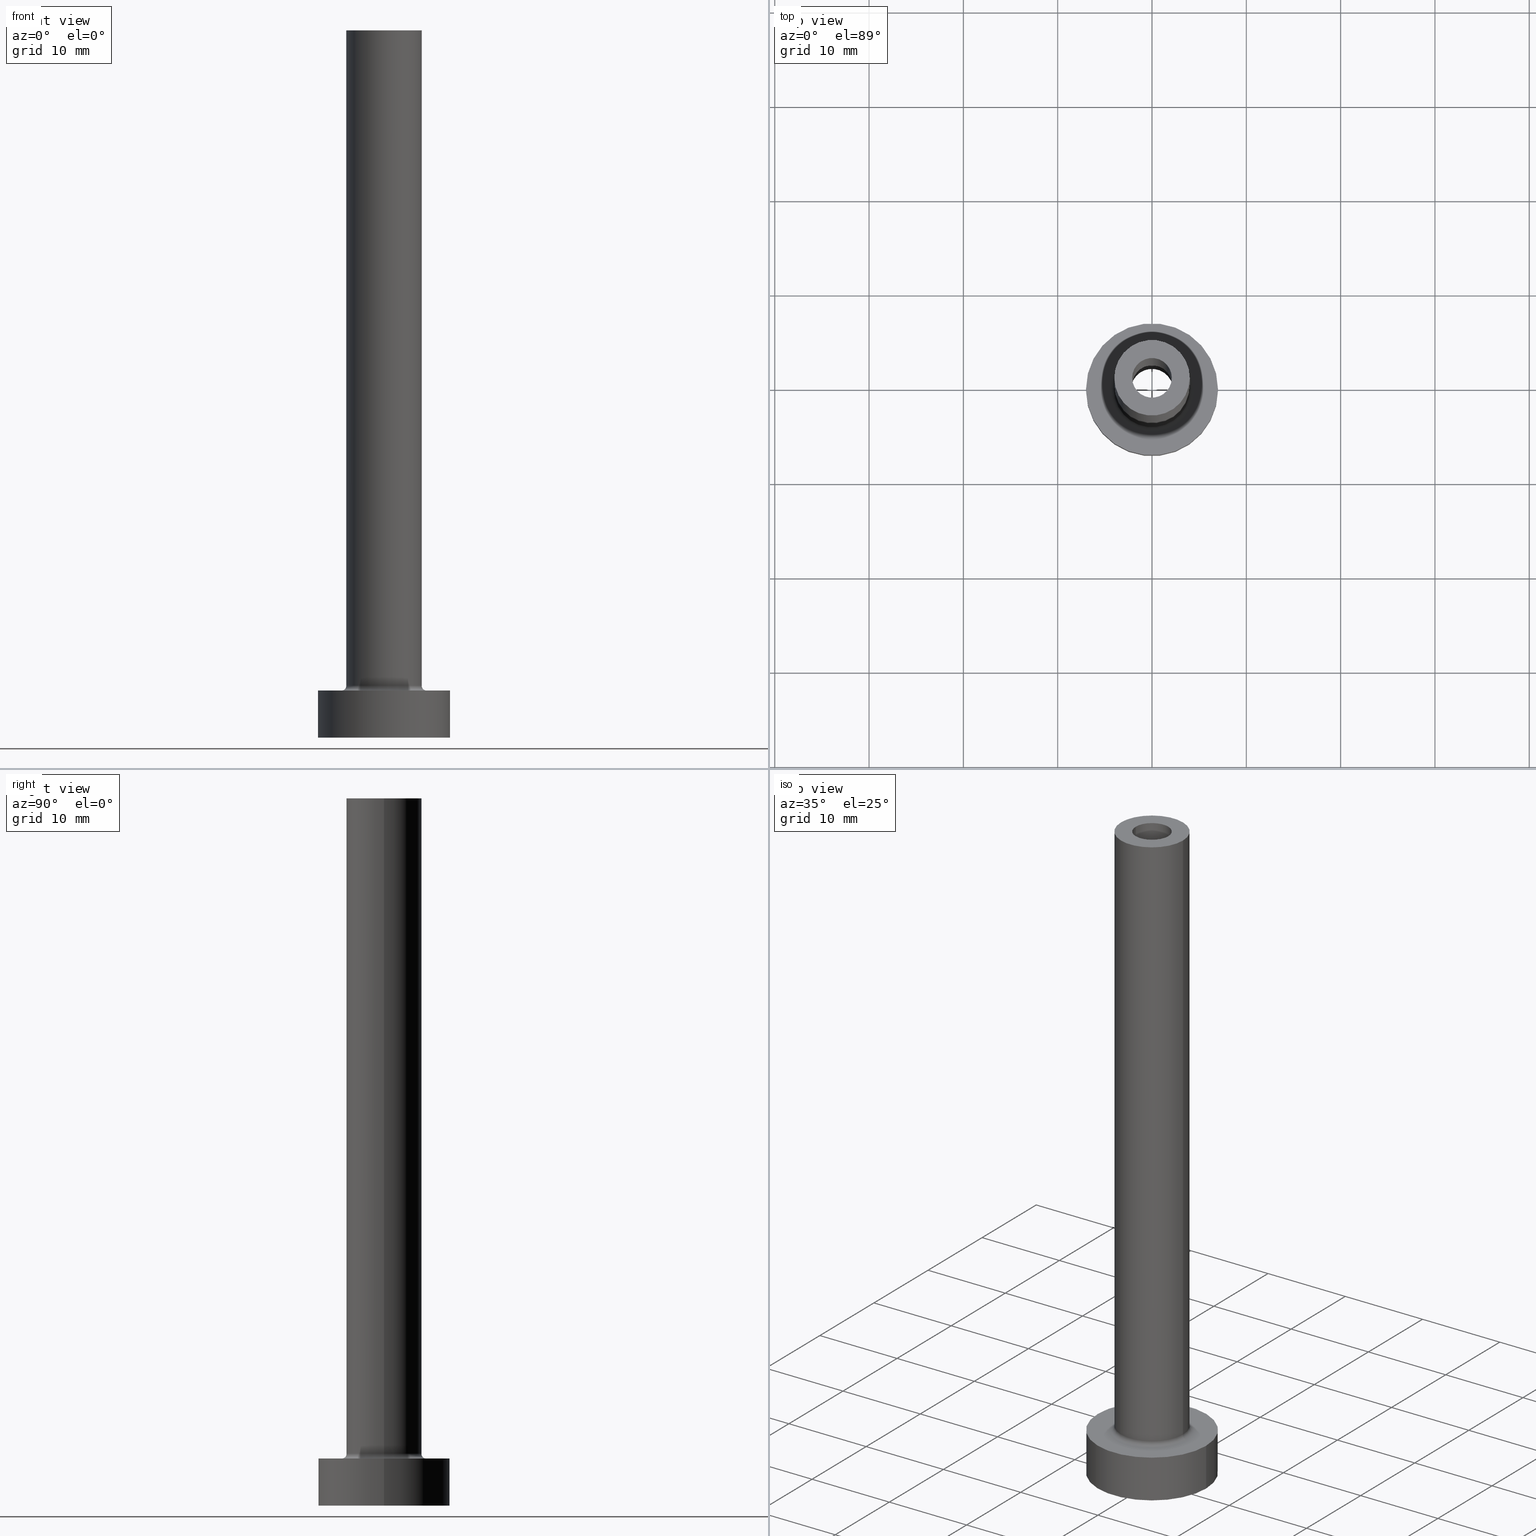
[diagram: canonical four-view strip — front | top / right | iso, engineering-drawing reading convention]
A machine part, canonical four-view strip (front | top / right | iso — engineering-drawing reading convention). The complete STEP part file that produces these views, byte-faithful:
ISO-10303-21;
HEADER;
FILE_DESCRIPTION (( 'STEP AP203' ),
    '1' );
FILE_NAME ('8937.STEP',
    '2023-02-13T17:34:15',
    ( '' ),
    ( '' ),
    'SwSTEP 2.0',
    'SolidWorks 2019',
    '' );
FILE_SCHEMA (( 'CONFIG_CONTROL_DESIGN' ));
ENDSEC;

DATA;
#1 = SECURITY_CLASSIFICATION ( '', '', #289 ) ;
#2 = AXIS2_PLACEMENT_3D ( 'NONE', #210, #122, #198 ) ;
#3 = AXIS2_PLACEMENT_3D ( 'NONE', #145, #357, #285 ) ;
#4 = FACE_OUTER_BOUND ( 'NONE', #147, .T. ) ;
#5 = ORIENTED_EDGE ( 'NONE', *, *, #191, .T. ) ;
#6 = ADVANCED_FACE ( 'NONE', ( #283 ), #365, .F. ) ;
#7 = ORIENTED_EDGE ( 'NONE', *, *, #255, .T. ) ;
#8 = AXIS2_PLACEMENT_3D ( 'NONE', #131, #173, #130 ) ;
#9 = VERTEX_POINT ( 'NONE', #138 ) ;
#10 = DIRECTION ( 'NONE',  ( 0.000000000000000000, 0.000000000000000000, 1.000000000000000000 ) ) ;
#11 = ORIENTED_EDGE ( 'NONE', *, *, #340, .T. ) ;
#12 = CYLINDRICAL_SURFACE ( 'NONE', #435, 4.000000000000000000 ) ;
#13 = VECTOR ( 'NONE', #50, 1000.000000000000000 ) ;
#14 = DIRECTION ( 'NONE',  ( 0.000000000000000000, 0.000000000000000000, 1.000000000000000000 ) ) ;
#15 = EDGE_CURVE ( 'NONE', #80, #219, #186, .T. ) ;
#16 = COORDINATED_UNIVERSAL_TIME_OFFSET ( 1, 0, .AHEAD. ) ;
#17 = EDGE_LOOP ( 'NONE', ( #237, #447 ) ) ;
#18 = EDGE_LOOP ( 'NONE', ( #230, #195, #83, #148 ) ) ;
#19 = CYLINDRICAL_SURFACE ( 'NONE', #392, 2.100000000000000089 ) ;
#20 = PERSON_AND_ORGANIZATION ( #59, #381 ) ;
#21 = DIRECTION ( 'NONE',  ( 1.000000000000000000, 0.000000000000000000, 0.000000000000000000 ) ) ;
#22 = ORIENTED_EDGE ( 'NONE', *, *, #334, .T. ) ;
#23 =( NAMED_UNIT ( * ) PLANE_ANGLE_UNIT ( ) SI_UNIT ( $, .RADIAN. ) );
#24 = CARTESIAN_POINT ( 'NONE',  ( 0.000000000000000000, 0.000000000000000000, 75.00000000000001421 ) ) ;
#25 = DIRECTION ( 'NONE',  ( -0.000000000000000000, -0.000000000000000000, -1.000000000000000000 ) ) ;
#26 = DIRECTION ( 'NONE',  ( -0.000000000000000000, -0.000000000000000000, -1.000000000000000000 ) ) ;
#27 = EDGE_LOOP ( 'NONE', ( #261, #5, #51, #103 ) ) ;
#28 = COORDINATED_UNIVERSAL_TIME_OFFSET ( 1, 0, .AHEAD. ) ;
#29 = EDGE_CURVE ( 'NONE', #189, #305, #155, .T. ) ;
#30 = DIRECTION ( 'NONE',  ( -1.000000000000000000, 0.000000000000000000, 0.000000000000000000 ) ) ;
#31 = PRODUCT ( '8937', '8937', '', ( #271 ) ) ;
#32 = CIRCLE ( 'NONE', #209, 2.100000000000000089 ) ;
#33 = SHAPE_DEFINITION_REPRESENTATION ( #433, #352 ) ;
#34 = DIRECTION ( 'NONE',  ( 0.000000000000000000, 0.000000000000000000, 1.000000000000000000 ) ) ;
#35 = CARTESIAN_POINT ( 'NONE',  ( 0.000000000000000000, 0.000000000000000000, 5.000000000000000000 ) ) ;
#36 = EDGE_CURVE ( 'NONE', #219, #80, #333, .T. ) ;
#37 = DIRECTION ( 'NONE',  ( 1.000000000000000000, 0.000000000000000000, 0.000000000000000000 ) ) ;
#38 = DIRECTION ( 'NONE',  ( 0.000000000000000000, 0.000000000000000000, 1.000000000000000000 ) ) ;
#39 = VERTEX_POINT ( 'NONE', #378 ) ;
#40 = DIRECTION ( 'NONE',  ( 1.000000000000000000, 0.000000000000000000, 0.000000000000000000 ) ) ;
#41 = EDGE_LOOP ( 'NONE', ( #48, #190 ) ) ;
#42 = VECTOR ( 'NONE', #407, 1000.000000000000000 ) ;
#43 = FACE_OUTER_BOUND ( 'NONE', #408, .T. ) ;
#44 = DIRECTION ( 'NONE',  ( 1.224646799147353207E-16, 1.000000000000000000, -0.000000000000000000 ) ) ;
#45 = DIRECTION ( 'NONE',  ( 1.000000000000000000, 0.000000000000000000, 0.000000000000000000 ) ) ;
#46 = CC_DESIGN_PERSON_AND_ORGANIZATION_ASSIGNMENT ( #423, #353, ( #31 ) ) ;
#47 = CARTESIAN_POINT ( 'NONE',  ( 2.100000000000000089, 2.571758278209441464E-16, 30.00000000000001421 ) ) ;
#48 = ORIENTED_EDGE ( 'NONE', *, *, #286, .T. ) ;
#49 = LINE ( 'NONE', #451, #264 ) ;
#50 = DIRECTION ( 'NONE',  ( -0.000000000000000000, -0.000000000000000000, -1.000000000000000000 ) ) ;
#51 = ORIENTED_EDGE ( 'NONE', *, *, #99, .T. ) ;
#52 = CARTESIAN_POINT ( 'NONE',  ( 2.250000000000000000, 2.755455298081544285E-16, 30.00000000000001421 ) ) ;
#53 = FACE_OUTER_BOUND ( 'NONE', #73, .T. ) ;
#54 = CARTESIAN_POINT ( 'NONE',  ( 0.000000000000000000, 0.000000000000000000, 5.500000000000005329 ) ) ;
#55 = ADVANCED_FACE ( 'NONE', ( #299, #445 ), #199, .F. ) ;
#56 = APPROVAL ( #171, 'NEUR�EN�' ) ;
#57 = DATE_TIME_ROLE ( 'creation_date' ) ;
#58 = CYLINDRICAL_SURFACE ( 'NONE', #360, 2.250000000000000000 ) ;
#59 = PERSON ( 'NEUR�EN�', 'NEUR�EN�', 'NEUR�EN�', ('NEUR�EN�'), ('NEUR�EN�'), ('NEUR�EN�') ) ;
#60 = CALENDAR_DATE ( 2023, 13, 2 ) ;
#61 = ORIENTED_EDGE ( 'NONE', *, *, #78, .F. ) ;
#62 = APPLICATION_PROTOCOL_DEFINITION ( 'international standard', 'config_control_design', 1994, #235 ) ;
#63 = CIRCLE ( 'NONE', #197, 2.100000000000000089 ) ;
#64 = DIRECTION ( 'NONE',  ( 0.000000000000000000, 0.000000000000000000, 1.000000000000000000 ) ) ;
#65 = EDGE_CURVE ( 'NONE', #187, #242, #375, .T. ) ;
#66 = FACE_BOUND ( 'NONE', #351, .T. ) ;
#67 = DIRECTION ( 'NONE',  ( 0.000000000000000000, 0.000000000000000000, 1.000000000000000000 ) ) ;
#68 = CARTESIAN_POINT ( 'NONE',  ( -7.000000000000000000, 0.000000000000000000, 5.000000000000000000 ) ) ;
#69 = DIRECTION ( 'NONE',  ( 0.000000000000000000, 0.000000000000000000, 1.000000000000000000 ) ) ;
#70 = PERSON_AND_ORGANIZATION ( #59, #381 ) ;
#71 = AXIS2_PLACEMENT_3D ( 'NONE', #106, #67, #276 ) ;
#72 = ORIENTED_EDGE ( 'NONE', *, *, #428, .T. ) ;
#73 = EDGE_LOOP ( 'NONE', ( #257, #61, #7, #223 ) ) ;
#74 = CARTESIAN_POINT ( 'NONE',  ( 2.250000000000000000, 2.755455298081544285E-16, 0.000000000000000000 ) ) ;
#75 = DIRECTION ( 'NONE',  ( 0.000000000000000000, 0.000000000000000000, 1.000000000000000000 ) ) ;
#76 = ORIENTED_EDGE ( 'NONE', *, *, #390, .F. ) ;
#77 = VECTOR ( 'NONE', #372, 1000.000000000000000 ) ;
#78 = EDGE_CURVE ( 'NONE', #9, #259, #203, .T. ) ;
#79 = CARTESIAN_POINT ( 'NONE',  ( 0.000000000000000000, 0.000000000000000000, 5.500000000000005329 ) ) ;
#80 = VERTEX_POINT ( 'NONE', #202 ) ;
#81 = CLOSED_SHELL ( 'NONE', ( #455, #438, #371, #214, #125, #154, #354, #55, #123, #224, #317, #207, #136, #6 ) ) ;
#82 = DIRECTION ( 'NONE',  ( 1.000000000000000000, 0.000000000000000000, 0.000000000000000000 ) ) ;
#83 = ORIENTED_EDGE ( 'NONE', *, *, #280, .T. ) ;
#84 = EDGE_CURVE ( 'NONE', #39, #256, #268, .T. ) ;
#85 = AXIS2_PLACEMENT_3D ( 'NONE', #87, #10, #298 ) ;
#86 = LOCAL_TIME ( 18, 34, 15.00000000000000000, #184 ) ;
#87 = CARTESIAN_POINT ( 'NONE',  ( 0.000000000000000000, 0.000000000000000000, 5.000000000000000000 ) ) ;
#88 = CARTESIAN_POINT ( 'NONE',  ( 0.000000000000000000, 0.000000000000000000, 0.000000000000000000 ) ) ;
#89 = ORIENTED_EDGE ( 'NONE', *, *, #266, .F. ) ;
#90 = DIRECTION ( 'NONE',  ( 1.000000000000000000, 0.000000000000000000, 0.000000000000000000 ) ) ;
#91 = FACE_OUTER_BOUND ( 'NONE', #18, .T. ) ;
#92 = CC_DESIGN_PERSON_AND_ORGANIZATION_ASSIGNMENT ( #20, #309, ( #374 ) ) ;
#93 = COORDINATED_UNIVERSAL_TIME_OFFSET ( 1, 0, .AHEAD. ) ;
#94 = VERTEX_POINT ( 'NONE', #52 ) ;
#95 = CALENDAR_DATE ( 2023, 13, 2 ) ;
#96 = FACE_OUTER_BOUND ( 'NONE', #239, .T. ) ;
#97 =( NAMED_UNIT ( * ) SI_UNIT ( $, .STERADIAN. ) SOLID_ANGLE_UNIT ( ) );
#98 = CARTESIAN_POINT ( 'NONE',  ( 0.000000000000000000, 0.000000000000000000, 75.00000000000001421 ) ) ;
#99 = EDGE_CURVE ( 'NONE', #412, #115, #212, .T. ) ;
#100 = CARTESIAN_POINT ( 'NONE',  ( 0.000000000000000000, 0.000000000000000000, 75.00000000000001421 ) ) ;
#101 = TOROIDAL_SURFACE ( 'NONE', #430, 4.500000000000000888, 0.5000000000000000000 ) ;
#102 = FACE_OUTER_BOUND ( 'NONE', #27, .T. ) ;
#103 = ORIENTED_EDGE ( 'NONE', *, *, #280, .F. ) ;
#104 = DIRECTION ( 'NONE',  ( -0.000000000000000000, -0.000000000000000000, -1.000000000000000000 ) ) ;
#105 = CARTESIAN_POINT ( 'NONE',  ( 0.000000000000000000, 0.000000000000000000, 36.36396103067894359 ) ) ;
#106 = CARTESIAN_POINT ( 'NONE',  ( 0.000000000000000000, 0.000000000000000000, 30.00000000000001421 ) ) ;
#107 = CARTESIAN_POINT ( 'NONE',  ( 0.000000000000000000, 0.000000000000000000, 5.000000000000000000 ) ) ;
#108 = APPROVAL_DATE_TIME ( #140, #458 ) ;
#109 = CARTESIAN_POINT ( 'NONE',  ( 0.000000000000000000, 0.000000000000000000, 30.00000000000001421 ) ) ;
#110 = CIRCLE ( 'NONE', #8, 2.250000000000000000 ) ;
#111 = ORIENTED_EDGE ( 'NONE', *, *, #255, .F. ) ;
#112 = CARTESIAN_POINT ( 'NONE',  ( 0.000000000000000000, 0.000000000000000000, 5.500000000000005329 ) ) ;
#113 = DIRECTION ( 'NONE',  ( 0.000000000000000000, 0.000000000000000000, -1.000000000000000000 ) ) ;
#114 = CARTESIAN_POINT ( 'NONE',  ( 2.250000000000000000, 2.755455298081544285E-16, 36.36396103067894359 ) ) ;
#115 = VERTEX_POINT ( 'NONE', #383 ) ;
#116 = EDGE_LOOP ( 'NONE', ( #324, #226, #120, #398 ) ) ;
#117 = DIRECTION ( 'NONE',  ( 1.000000000000000000, 0.000000000000000000, -0.000000000000000000 ) ) ;
#118 = EDGE_CURVE ( 'NONE', #187, #189, #49, .T. ) ;
#119 = CIRCLE ( 'NONE', #379, 7.000000000000000000 ) ;
#120 = ORIENTED_EDGE ( 'NONE', *, *, #29, .F. ) ;
#121 = APPROVAL_PERSON_ORGANIZATION ( #141, #458, #361 ) ;
#122 = DIRECTION ( 'NONE',  ( -0.000000000000000000, -0.000000000000000000, -1.000000000000000000 ) ) ;
#123 = ADVANCED_FACE ( 'NONE', ( #337 ), #12, .T. ) ;
#124 = ORIENTED_EDGE ( 'NONE', *, *, #78, .T. ) ;
#125 = ADVANCED_FACE ( 'NONE', ( #312 ), #275, .T. ) ;
#126 =( GEOMETRIC_REPRESENTATION_CONTEXT ( 3 ) GLOBAL_UNCERTAINTY_ASSIGNED_CONTEXT ( ( #270 ) ) GLOBAL_UNIT_ASSIGNED_CONTEXT ( ( #313, #23, #97 ) ) REPRESENTATION_CONTEXT ( 'NONE', 'WORKASPACE' ) );
#127 = PLANE ( 'NONE',  #85 ) ;
#128 = ORIENTED_EDGE ( 'NONE', *, *, #286, .F. ) ;
#129 = DATE_AND_TIME ( #450, #304 ) ;
#130 = DIRECTION ( 'NONE',  ( 1.000000000000000000, 0.000000000000000000, 0.000000000000000000 ) ) ;
#131 = CARTESIAN_POINT ( 'NONE',  ( 0.000000000000000000, 0.000000000000000000, 30.00000000000001421 ) ) ;
#132 = CIRCLE ( 'NONE', #182, 2.250000000000000000 ) ;
#133 = CARTESIAN_POINT ( 'NONE',  ( 0.000000000000000000, 0.000000000000000000, 75.00000000000001421 ) ) ;
#134 = CARTESIAN_POINT ( 'NONE',  ( -7.000000000000000000, 0.000000000000000000, 5.000000000000000000 ) ) ;
#135 = APPLICATION_CONTEXT ( 'configuration controlled 3d designs of mechanical parts and assemblies' ) ;
#136 = ADVANCED_FACE ( 'NONE', ( #320, #157 ), #330, .F. ) ;
#137 = APPLICATION_PROTOCOL_DEFINITION ( 'international standard', 'config_control_design', 1994, #135 ) ;
#138 = CARTESIAN_POINT ( 'NONE',  ( 4.000000000000000000, 4.898587196589412829E-16, 5.500000000000005329 ) ) ;
#139 = CYLINDRICAL_SURFACE ( 'NONE', #311, 4.000000000000000000 ) ;
#140 = DATE_AND_TIME ( #434, #86 ) ;
#141 = PERSON_AND_ORGANIZATION ( #59, #381 ) ;
#142 = ORIENTED_EDGE ( 'NONE', *, *, #36, .T. ) ;
#143 = DIRECTION ( 'NONE',  ( 0.000000000000000000, -1.000000000000000000, 0.000000000000000000 ) ) ;
#144 = PRODUCT_RELATED_PRODUCT_CATEGORY ( 'detail', '', ( #31 ) ) ;
#145 = CARTESIAN_POINT ( 'NONE',  ( 0.000000000000000000, 0.000000000000000000, 75.00000000000001421 ) ) ;
#146 = DIRECTION ( 'NONE',  ( 0.000000000000000000, 0.000000000000000000, -1.000000000000000000 ) ) ;
#147 = EDGE_LOOP ( 'NONE', ( #369, #367, #72, #393 ) ) ;
#148 = ORIENTED_EDGE ( 'NONE', *, *, #238, .T. ) ;
#149 = LINE ( 'NONE', #258, #461 ) ;
#150 = CARTESIAN_POINT ( 'NONE',  ( -2.100000000000000089, 0.000000000000000000, 75.00000000000001421 ) ) ;
#151 = ORIENTED_EDGE ( 'NONE', *, *, #409, .T. ) ;
#152 = DIRECTION ( 'NONE',  ( 0.000000000000000000, 0.000000000000000000, 1.000000000000000000 ) ) ;
#153 = DIRECTION ( 'NONE',  ( 0.000000000000000000, 0.000000000000000000, 1.000000000000000000 ) ) ;
#154 = ADVANCED_FACE ( 'NONE', ( #4 ), #227, .T. ) ;
#155 = CIRCLE ( 'NONE', #419, 2.100000000000000089 ) ;
#156 = LINE ( 'NONE', #452, #321 ) ;
#157 = FACE_OUTER_BOUND ( 'NONE', #243, .T. ) ;
#158 = EDGE_LOOP ( 'NONE', ( #326, #228, #287, #89 ) ) ;
#159 = AXIS2_PLACEMENT_3D ( 'NONE', #265, #200, #300 ) ;
#160 = CARTESIAN_POINT ( 'NONE',  ( 7.000000000000000000, 8.572527594031473190E-16, 5.000000000000000000 ) ) ;
#161 = DIRECTION ( 'NONE',  ( 1.000000000000000000, 0.000000000000000000, 0.000000000000000000 ) ) ;
#162 = APPROVAL_PERSON_ORGANIZATION ( #417, #344, #205 ) ;
#163 = CARTESIAN_POINT ( 'NONE',  ( 0.000000000000000000, 0.000000000000000000, 0.000000000000000000 ) ) ;
#164 = AXIS2_PLACEMENT_3D ( 'NONE', #251, #69, #117 ) ;
#165 = CARTESIAN_POINT ( 'NONE',  ( 0.000000000000000000, 0.000000000000000000, 75.00000000000001421 ) ) ;
#166 = DIRECTION ( 'NONE',  ( 0.000000000000000000, 0.000000000000000000, 1.000000000000000000 ) ) ;
#167 = DESIGN_CONTEXT ( 'detailed design', #135, 'design' ) ;
#168 = ORIENTED_EDGE ( 'NONE', *, *, #84, .T. ) ;
#169 = EDGE_CURVE ( 'NONE', #80, #9, #325, .T. ) ;
#170 = DIRECTION ( 'NONE',  ( 1.000000000000000000, 0.000000000000000000, 0.000000000000000000 ) ) ;
#171 = APPROVAL_STATUS ( 'not_yet_approved' ) ;
#172 = AXIS2_PLACEMENT_3D ( 'NONE', #54, #14, #415 ) ;
#173 = DIRECTION ( 'NONE',  ( 0.000000000000000000, 0.000000000000000000, 1.000000000000000000 ) ) ;
#174 = AXIS2_PLACEMENT_3D ( 'NONE', #35, #336, #262 ) ;
#175 = EDGE_CURVE ( 'NONE', #382, #39, #221, .T. ) ;
#176 = DIRECTION ( 'NONE',  ( 1.000000000000000000, 0.000000000000000000, 0.000000000000000000 ) ) ;
#177 = DIRECTION ( 'NONE',  ( 0.000000000000000000, 0.000000000000000000, 1.000000000000000000 ) ) ;
#178 = AXIS2_PLACEMENT_3D ( 'NONE', #429, #34, #90 ) ;
#179 = CARTESIAN_POINT ( 'NONE',  ( 2.100000000000000089, 2.571758278209441464E-16, 75.00000000000001421 ) ) ;
#180 = DIRECTION ( 'NONE',  ( 1.000000000000000000, 0.000000000000000000, -0.000000000000000000 ) ) ;
#181 = CALENDAR_DATE ( 2023, 13, 2 ) ;
#182 = AXIS2_PLACEMENT_3D ( 'NONE', #389, #350, #176 ) ;
#183 = VERTEX_POINT ( 'NONE', #188 ) ;
#184 = COORDINATED_UNIVERSAL_TIME_OFFSET ( 1, 0, .AHEAD. ) ;
#185 = LOCAL_TIME ( 18, 34, 15.00000000000000000, #93 ) ;
#186 = CIRCLE ( 'NONE', #3, 4.000000000000000000 ) ;
#187 = VERTEX_POINT ( 'NONE', #150 ) ;
#188 = CARTESIAN_POINT ( 'NONE',  ( -2.250000000000000000, 0.000000000000000000, 30.00000000000001421 ) ) ;
#189 = VERTEX_POINT ( 'NONE', #218 ) ;
#190 = ORIENTED_EDGE ( 'NONE', *, *, #301, .T. ) ;
#191 = EDGE_CURVE ( 'NONE', #94, #412, #400, .T. ) ;
#192 = ORIENTED_EDGE ( 'NONE', *, *, #266, .T. ) ;
#193 = DIRECTION ( 'NONE',  ( -1.000000000000000000, 1.224646799147351482E-16, 0.000000000000000000 ) ) ;
#194 = LINE ( 'NONE', #263, #13 ) ;
#195 = ORIENTED_EDGE ( 'NONE', *, *, #421, .T. ) ;
#196 = DIRECTION ( 'NONE',  ( 0.000000000000000000, 0.000000000000000000, -1.000000000000000000 ) ) ;
#197 = AXIS2_PLACEMENT_3D ( 'NONE', #314, #278, #40 ) ;
#198 = DIRECTION ( 'NONE',  ( 1.000000000000000000, 0.000000000000000000, 0.000000000000000000 ) ) ;
#199 = PLANE ( 'NONE',  #213 ) ;
#200 = DIRECTION ( 'NONE',  ( 0.000000000000000000, 0.000000000000000000, 1.000000000000000000 ) ) ;
#201 = ORIENTED_EDGE ( 'NONE', *, *, #421, .F. ) ;
#202 = CARTESIAN_POINT ( 'NONE',  ( 4.000000000000000000, 4.898587196589412829E-16, 75.00000000000001421 ) ) ;
#203 = CIRCLE ( 'NONE', #172, 4.000000000000000000 ) ;
#204 = VERTEX_POINT ( 'NONE', #339 ) ;
#205 = APPROVAL_ROLE ( '' ) ;
#207 = ADVANCED_FACE ( 'NONE', ( #91 ), #58, .F. ) ;
#206 = FACE_OUTER_BOUND ( 'NONE', #296, .T. ) ;
#208 = ORIENTED_EDGE ( 'NONE', *, *, #409, .F. ) ;
#209 = AXIS2_PLACEMENT_3D ( 'NONE', #359, #153, #358 ) ;
#210 = CARTESIAN_POINT ( 'NONE',  ( 0.000000000000000000, 0.000000000000000000, 0.000000000000000000 ) ) ;
#211 = APPROVAL_STATUS ( 'not_yet_approved' ) ;
#212 = CIRCLE ( 'NONE', #2, 2.250000000000000000 ) ;
#213 = AXIS2_PLACEMENT_3D ( 'NONE', #163, #329, #427 ) ;
#214 = ADVANCED_FACE ( 'NONE', ( #96 ), #139, .T. ) ;
#215 = CARTESIAN_POINT ( 'NONE',  ( 0.000000000000000000, 0.000000000000000000, 36.36396103067894359 ) ) ;
#216 = VERTEX_POINT ( 'NONE', #279 ) ;
#217 = AXIS2_PLACEMENT_3D ( 'NONE', #396, #253, #399 ) ;
#218 = CARTESIAN_POINT ( 'NONE',  ( -2.100000000000000089, 0.000000000000000000, 30.00000000000001421 ) ) ;
#219 = VERTEX_POINT ( 'NONE', #397 ) ;
#220 = DATE_AND_TIME ( #181, #323 ) ;
#221 = CIRCLE ( 'NONE', #411, 7.000000000000000000 ) ;
#222 = CARTESIAN_POINT ( 'NONE',  ( -4.500000000000000888, 5.510910596163088569E-16, 5.000000000000002665 ) ) ;
#223 = ORIENTED_EDGE ( 'NONE', *, *, #301, .F. ) ;
#224 = ADVANCED_FACE ( 'NONE', ( #66, #252 ), #457, .T. ) ;
#225 = PERSON_AND_ORGANIZATION_ROLE ( 'classification_officer' ) ;
#226 = ORIENTED_EDGE ( 'NONE', *, *, #377, .T. ) ;
#227 = CYLINDRICAL_SURFACE ( 'NONE', #424, 7.000000000000000000 ) ;
#228 = ORIENTED_EDGE ( 'NONE', *, *, #250, .T. ) ;
#229 = DIRECTION ( 'NONE',  ( 1.000000000000000000, 0.000000000000000000, 0.000000000000000000 ) ) ;
#230 = ORIENTED_EDGE ( 'NONE', *, *, #191, .F. ) ;
#231 = CC_DESIGN_DATE_AND_TIME_ASSIGNMENT ( #220, #368, ( #1 ) ) ;
#232 = CARTESIAN_POINT ( 'NONE',  ( -4.500000000000000888, 5.510910596163089556E-16, 5.500000000000005329 ) ) ;
#233 = CIRCLE ( 'NONE', #159, 7.000000000000000000 ) ;
#234 = CIRCLE ( 'NONE', #446, 0.5000000000000004441 ) ;
#235 = APPLICATION_CONTEXT ( 'configuration controlled 3d designs of mechanical parts and assemblies' ) ;
#236 = CC_DESIGN_SECURITY_CLASSIFICATION ( #1, ( #374 ) ) ;
#237 = ORIENTED_EDGE ( 'NONE', *, *, #238, .F. ) ;
#238 = EDGE_CURVE ( 'NONE', #115, #412, #132, .T. ) ;
#239 = EDGE_LOOP ( 'NONE', ( #363, #454, #124, #208 ) ) ;
#240 = DIRECTION ( 'NONE',  ( 0.000000000000000000, 0.000000000000000000, 1.000000000000000000 ) ) ;
#241 = PERSON_AND_ORGANIZATION_ROLE ( 'creator' ) ;
#242 = VERTEX_POINT ( 'NONE', #179 ) ;
#243 = EDGE_LOOP ( 'NONE', ( #364, #201 ) ) ;
#244 = COORDINATED_UNIVERSAL_TIME_OFFSET ( 1, 0, .AHEAD. ) ;
#245 = DIRECTION ( 'NONE',  ( -1.000000000000000000, 0.000000000000000000, 0.000000000000000000 ) ) ;
#246 = DATE_AND_TIME ( #95, #441 ) ;
#247 = CC_DESIGN_DATE_AND_TIME_ASSIGNMENT ( #384, #57, ( #431 ) ) ;
#248 = CARTESIAN_POINT ( 'NONE',  ( 0.000000000000000000, 0.000000000000000000, 75.00000000000001421 ) ) ;
#249 = AXIS2_PLACEMENT_3D ( 'NONE', #356, #104, #30 ) ;
#250 = EDGE_CURVE ( 'NONE', #242, #187, #63, .T. ) ;
#251 = CARTESIAN_POINT ( 'NONE',  ( 0.000000000000000000, 0.000000000000000000, 30.00000000000001421 ) ) ;
#252 = FACE_OUTER_BOUND ( 'NONE', #380, .T. ) ;
#253 = DIRECTION ( 'NONE',  ( -0.000000000000000000, -0.000000000000000000, -1.000000000000000000 ) ) ;
#254 = CARTESIAN_POINT ( 'NONE',  ( 7.000000000000000000, 8.572527594031473190E-16, 0.000000000000000000 ) ) ;
#255 = EDGE_CURVE ( 'NONE', #9, #204, #234, .T. ) ;
#256 = VERTEX_POINT ( 'NONE', #254 ) ;
#257 = ORIENTED_EDGE ( 'NONE', *, *, #334, .F. ) ;
#258 = CARTESIAN_POINT ( 'NONE',  ( -2.250000000000000000, 0.000000000000000000, 36.36396103067894359 ) ) ;
#259 = VERTEX_POINT ( 'NONE', #284 ) ;
#260 = AXIS2_PLACEMENT_3D ( 'NONE', #232, #44, #193 ) ;
#261 = ORIENTED_EDGE ( 'NONE', *, *, #448, .T. ) ;
#262 = DIRECTION ( 'NONE',  ( 1.000000000000000000, 0.000000000000000000, 0.000000000000000000 ) ) ;
#263 = CARTESIAN_POINT ( 'NONE',  ( -4.000000000000000000, 0.000000000000000000, 75.00000000000001421 ) ) ;
#264 = VECTOR ( 'NONE', #196, 1000.000000000000000 ) ;
#265 = CARTESIAN_POINT ( 'NONE',  ( 0.000000000000000000, 0.000000000000000000, 5.000000000000000000 ) ) ;
#266 = EDGE_CURVE ( 'NONE', #305, #189, #32, .T. ) ;
#267 = FACE_BOUND ( 'NONE', #41, .T. ) ;
#268 = LINE ( 'NONE', #160, #432 ) ;
#269 = APPROVAL_DATE_TIME ( #129, #344 ) ;
#270 = UNCERTAINTY_MEASURE_WITH_UNIT (LENGTH_MEASURE( 1.000000000000000082E-05 ), #313, 'distance_accuracy_value', 'NONE');
#271 = MECHANICAL_CONTEXT ( 'NONE', #235, 'mechanical' ) ;
#272 = CIRCLE ( 'NONE', #71, 2.250000000000000000 ) ;
#273 = DIRECTION ( 'NONE',  ( 0.000000000000000000, 0.000000000000000000, -1.000000000000000000 ) ) ;
#274 = CC_DESIGN_APPROVAL ( #458, ( #1 ) ) ;
#275 = CYLINDRICAL_SURFACE ( 'NONE', #249, 7.000000000000000000 ) ;
#276 = DIRECTION ( 'NONE',  ( 1.000000000000000000, 0.000000000000000000, 0.000000000000000000 ) ) ;
#277 = DIRECTION ( 'NONE',  ( 0.000000000000000000, 0.000000000000000000, -1.000000000000000000 ) ) ;
#278 = DIRECTION ( 'NONE',  ( 0.000000000000000000, 0.000000000000000000, 1.000000000000000000 ) ) ;
#279 = CARTESIAN_POINT ( 'NONE',  ( -7.000000000000000000, 0.000000000000000000, 0.000000000000000000 ) ) ;
#280 = EDGE_CURVE ( 'NONE', #183, #115, #149, .T. ) ;
#281 = VECTOR ( 'NONE', #25, 1000.000000000000000 ) ;
#282 = APPROVAL_STATUS ( 'not_yet_approved' ) ;
#283 = FACE_OUTER_BOUND ( 'NONE', #158, .T. ) ;
#284 = CARTESIAN_POINT ( 'NONE',  ( -4.000000000000000000, 0.000000000000000000, 5.500000000000005329 ) ) ;
#285 = DIRECTION ( 'NONE',  ( 1.000000000000000000, 0.000000000000000000, 0.000000000000000000 ) ) ;
#286 = EDGE_CURVE ( 'NONE', #204, #288, #328, .T. ) ;
#287 = ORIENTED_EDGE ( 'NONE', *, *, #118, .T. ) ;
#288 = VERTEX_POINT ( 'NONE', #222 ) ;
#289 = SECURITY_CLASSIFICATION_LEVEL ( 'unclassified' ) ;
#290 = MANIFOLD_SOLID_BREP ( 'Odebrat vysunut�m4', #81 ) ;
#291 = CARTESIAN_POINT ( 'NONE',  ( 4.000000000000000000, 4.898587196589412829E-16, 75.00000000000001421 ) ) ;
#292 = ORIENTED_EDGE ( 'NONE', *, *, #335, .F. ) ;
#293 = ORIENTED_EDGE ( 'NONE', *, *, #175, .T. ) ;
#294 = ORIENTED_EDGE ( 'NONE', *, *, #460, .T. ) ;
#295 = DIRECTION ( 'NONE',  ( 0.000000000000000000, 0.000000000000000000, 1.000000000000000000 ) ) ;
#296 = EDGE_LOOP ( 'NONE', ( #293, #11 ) ) ;
#297 = CIRCLE ( 'NONE', #174, 4.500000000000000888 ) ;
#298 = DIRECTION ( 'NONE',  ( 1.000000000000000000, 0.000000000000000000, -0.000000000000000000 ) ) ;
#299 = FACE_BOUND ( 'NONE', #17, .T. ) ;
#301 = EDGE_CURVE ( 'NONE', #288, #204, #297, .T. ) ;
#300 = DIRECTION ( 'NONE',  ( 1.000000000000000000, 0.000000000000000000, 0.000000000000000000 ) ) ;
#302 = CIRCLE ( 'NONE', #260, 0.5000000000000004441 ) ;
#303 = ORIENTED_EDGE ( 'NONE', *, *, #460, .F. ) ;
#304 = LOCAL_TIME ( 18, 34, 15.00000000000000000, #16 ) ;
#305 = VERTEX_POINT ( 'NONE', #47 ) ;
#306 = DIRECTION ( 'NONE',  ( 1.000000000000000000, 0.000000000000000000, 0.000000000000000000 ) ) ;
#307 = CC_DESIGN_PERSON_AND_ORGANIZATION_ASSIGNMENT ( #70, #225, ( #1 ) ) ;
#308 = ORIENTED_EDGE ( 'NONE', *, *, #390, .T. ) ;
#309 = PERSON_AND_ORGANIZATION_ROLE ( 'creator' ) ;
#310 = DIRECTION ( 'NONE',  ( 0.000000000000000000, 0.000000000000000000, -1.000000000000000000 ) ) ;
#311 = AXIS2_PLACEMENT_3D ( 'NONE', #133, #26, #355 ) ;
#312 = FACE_OUTER_BOUND ( 'NONE', #410, .T. ) ;
#313 =( LENGTH_UNIT ( ) NAMED_UNIT ( * ) SI_UNIT ( .MILLI., .METRE. ) );
#314 = CARTESIAN_POINT ( 'NONE',  ( 0.000000000000000000, 0.000000000000000000, 75.00000000000001421 ) ) ;
#315 = FACE_OUTER_BOUND ( 'NONE', #116, .T. ) ;
#316 = DIRECTION ( 'NONE',  ( -1.000000000000000000, 0.000000000000000000, 0.000000000000000000 ) ) ;
#317 = ADVANCED_FACE ( 'NONE', ( #53 ), #101, .F. ) ;
#318 = DIRECTION ( 'NONE',  ( -1.000000000000000000, 0.000000000000000000, 0.000000000000000000 ) ) ;
#319 = ORIENTED_EDGE ( 'NONE', *, *, #29, .T. ) ;
#320 = FACE_BOUND ( 'NONE', #414, .T. ) ;
#321 = VECTOR ( 'NONE', #146, 1000.000000000000000 ) ;
#322 = CARTESIAN_POINT ( 'NONE',  ( 4.500000000000000888, 0.000000000000000000, 5.500000000000005329 ) ) ;
#323 = LOCAL_TIME ( 18, 34, 15.00000000000000000, #28 ) ;
#324 = ORIENTED_EDGE ( 'NONE', *, *, #65, .T. ) ;
#325 = LINE ( 'NONE', #291, #77 ) ;
#326 = ORIENTED_EDGE ( 'NONE', *, *, #377, .F. ) ;
#327 = ORIENTED_EDGE ( 'NONE', *, *, #36, .F. ) ;
#328 = CIRCLE ( 'NONE', #217, 4.500000000000000888 ) ;
#329 = DIRECTION ( 'NONE',  ( 0.000000000000000000, 0.000000000000000000, 1.000000000000000000 ) ) ;
#330 = PLANE ( 'NONE',  #164 ) ;
#331 = ORIENTED_EDGE ( 'NONE', *, *, #340, .F. ) ;
#332 = CARTESIAN_POINT ( 'NONE',  ( 0.000000000000000000, 0.000000000000000000, 0.000000000000000000 ) ) ;
#333 = CIRCLE ( 'NONE', #346, 4.000000000000000000 ) ;
#334 = EDGE_CURVE ( 'NONE', #259, #288, #302, .T. ) ;
#335 = EDGE_CURVE ( 'NONE', #216, #256, #119, .T. ) ;
#336 = DIRECTION ( 'NONE',  ( -0.000000000000000000, -0.000000000000000000, -1.000000000000000000 ) ) ;
#337 = FACE_OUTER_BOUND ( 'NONE', #436, .T. ) ;
#338 = AXIS2_PLACEMENT_3D ( 'NONE', #442, #240, #170 ) ;
#339 = CARTESIAN_POINT ( 'NONE',  ( 4.500000000000000888, 0.000000000000000000, 5.000000000000002665 ) ) ;
#340 = EDGE_CURVE ( 'NONE', #39, #382, #233, .T. ) ;
#341 = AXIS2_PLACEMENT_3D ( 'NONE', #98, #64, #180 ) ;
#342 = ORIENTED_EDGE ( 'NONE', *, *, #15, .T. ) ;
#343 = PERSON_AND_ORGANIZATION ( #59, #381 ) ;
#344 = APPROVAL ( #211, 'NEUR�EN�' ) ;
#345 = APPROVAL_PERSON_ORGANIZATION ( #343, #56, #453 ) ;
#346 = AXIS2_PLACEMENT_3D ( 'NONE', #100, #394, #82 ) ;
#347 = APPROVAL_DATE_TIME ( #246, #56 ) ;
#348 = DIRECTION ( 'NONE',  ( -1.000000000000000000, 0.000000000000000000, 0.000000000000000000 ) ) ;
#349 = AXIS2_PLACEMENT_3D ( 'NONE', #215, #277, #387 ) ;
#350 = DIRECTION ( 'NONE',  ( -0.000000000000000000, -0.000000000000000000, -1.000000000000000000 ) ) ;
#351 = EDGE_LOOP ( 'NONE', ( #449, #437 ) ) ;
#352 = ADVANCED_BREP_SHAPE_REPRESENTATION ( '8937', ( #290, #385 ), #126 ) ;
#353 = PERSON_AND_ORGANIZATION_ROLE ( 'design_owner' ) ;
#354 = ADVANCED_FACE ( 'NONE', ( #267, #206 ), #127, .T. ) ;
#355 = DIRECTION ( 'NONE',  ( -1.000000000000000000, 0.000000000000000000, 0.000000000000000000 ) ) ;
#356 = CARTESIAN_POINT ( 'NONE',  ( 0.000000000000000000, 0.000000000000000000, 5.000000000000000000 ) ) ;
#357 = DIRECTION ( 'NONE',  ( 0.000000000000000000, 0.000000000000000000, 1.000000000000000000 ) ) ;
#358 = DIRECTION ( 'NONE',  ( 1.000000000000000000, 0.000000000000000000, 0.000000000000000000 ) ) ;
#359 = CARTESIAN_POINT ( 'NONE',  ( 0.000000000000000000, 0.000000000000000000, 30.00000000000001421 ) ) ;
#360 = AXIS2_PLACEMENT_3D ( 'NONE', #105, #310, #318 ) ;
#361 = APPROVAL_ROLE ( '' ) ;
#362 = DIRECTION ( 'NONE',  ( 0.000000000000000000, 0.000000000000000000, -1.000000000000000000 ) ) ;
#363 = ORIENTED_EDGE ( 'NONE', *, *, #15, .F. ) ;
#364 = ORIENTED_EDGE ( 'NONE', *, *, #448, .F. ) ;
#365 = CYLINDRICAL_SURFACE ( 'NONE', #406, 2.100000000000000089 ) ;
#366 = DIRECTION ( 'NONE',  ( -1.000000000000000000, 0.000000000000000000, 0.000000000000000000 ) ) ;
#367 = ORIENTED_EDGE ( 'NONE', *, *, #175, .F. ) ;
#368 = DATE_TIME_ROLE ( 'classification_date' ) ;
#369 = ORIENTED_EDGE ( 'NONE', *, *, #84, .F. ) ;
#370 = CIRCLE ( 'NONE', #416, 4.000000000000000000 ) ;
#371 = ADVANCED_FACE ( 'NONE', ( #43 ), #444, .F. ) ;
#372 = DIRECTION ( 'NONE',  ( -0.000000000000000000, -0.000000000000000000, -1.000000000000000000 ) ) ;
#373 = CYLINDRICAL_SURFACE ( 'NONE', #349, 2.250000000000000000 ) ;
#374 = PRODUCT_DEFINITION_FORMATION_WITH_SPECIFIED_SOURCE ( 'LIBOVOLN�', '', #31, .NOT_KNOWN. ) ;
#375 = CIRCLE ( 'NONE', #178, 2.100000000000000089 ) ;
#376 = DIRECTION ( 'NONE',  ( 1.000000000000000000, 0.000000000000000000, 0.000000000000000000 ) ) ;
#377 = EDGE_CURVE ( 'NONE', #242, #305, #156, .T. ) ;
#378 = CARTESIAN_POINT ( 'NONE',  ( 7.000000000000000000, 8.572527594031473190E-16, 5.000000000000000000 ) ) ;
#379 = AXIS2_PLACEMENT_3D ( 'NONE', #332, #295, #161 ) ;
#380 = EDGE_LOOP ( 'NONE', ( #142, #342 ) ) ;
#381 = ORGANIZATION ( 'NEUR�EN�', 'NEUR�EN�', '' ) ;
#382 = VERTEX_POINT ( 'NONE', #134 ) ;
#383 = CARTESIAN_POINT ( 'NONE',  ( -2.250000000000000000, 0.000000000000000000, 0.000000000000000000 ) ) ;
#384 = DATE_AND_TIME ( #60, #185 ) ;
#385 = AXIS2_PLACEMENT_3D ( 'NONE', #88, #166, #306 ) ;
#386 = PERSON_AND_ORGANIZATION ( #59, #381 ) ;
#387 = DIRECTION ( 'NONE',  ( -1.000000000000000000, 0.000000000000000000, 0.000000000000000000 ) ) ;
#388 = LINE ( 'NONE', #68, #281 ) ;
#389 = CARTESIAN_POINT ( 'NONE',  ( 0.000000000000000000, 0.000000000000000000, 0.000000000000000000 ) ) ;
#390 = EDGE_CURVE ( 'NONE', #259, #9, #370, .T. ) ;
#391 = CC_DESIGN_PERSON_AND_ORGANIZATION_ASSIGNMENT ( #386, #241, ( #431 ) ) ;
#392 = AXIS2_PLACEMENT_3D ( 'NONE', #248, #273, #348 ) ;
#393 = ORIENTED_EDGE ( 'NONE', *, *, #335, .T. ) ;
#394 = DIRECTION ( 'NONE',  ( 0.000000000000000000, 0.000000000000000000, 1.000000000000000000 ) ) ;
#395 = DIRECTION ( 'NONE',  ( 0.000000000000000000, 0.000000000000000000, -1.000000000000000000 ) ) ;
#396 = CARTESIAN_POINT ( 'NONE',  ( 0.000000000000000000, 0.000000000000000000, 5.000000000000000000 ) ) ;
#397 = CARTESIAN_POINT ( 'NONE',  ( -4.000000000000000000, 0.000000000000000000, 75.00000000000001421 ) ) ;
#398 = ORIENTED_EDGE ( 'NONE', *, *, #118, .F. ) ;
#399 = DIRECTION ( 'NONE',  ( 1.000000000000000000, 0.000000000000000000, 0.000000000000000000 ) ) ;
#400 = LINE ( 'NONE', #114, #42 ) ;
#401 = CIRCLE ( 'NONE', #456, 7.000000000000000000 ) ;
#402 = PERSON_AND_ORGANIZATION_ROLE ( 'design_supplier' ) ;
#403 = DIRECTION ( 'NONE',  ( 0.000000000000000000, 0.000000000000000000, 1.000000000000000000 ) ) ;
#404 = CARTESIAN_POINT ( 'NONE',  ( 0.000000000000000000, 0.000000000000000000, 5.000000000000000000 ) ) ;
#405 = ORIENTED_EDGE ( 'NONE', *, *, #428, .F. ) ;
#406 = AXIS2_PLACEMENT_3D ( 'NONE', #24, #362, #316 ) ;
#407 = DIRECTION ( 'NONE',  ( 0.000000000000000000, 0.000000000000000000, -1.000000000000000000 ) ) ;
#408 = EDGE_LOOP ( 'NONE', ( #76, #22, #128, #111 ) ) ;
#409 = EDGE_CURVE ( 'NONE', #219, #259, #194, .T. ) ;
#410 = EDGE_LOOP ( 'NONE', ( #331, #168, #294, #405 ) ) ;
#411 = AXIS2_PLACEMENT_3D ( 'NONE', #404, #38, #45 ) ;
#412 = VERTEX_POINT ( 'NONE', #74 ) ;
#413 = CC_DESIGN_PERSON_AND_ORGANIZATION_ASSIGNMENT ( #425, #402, ( #374 ) ) ;
#414 = EDGE_LOOP ( 'NONE', ( #319, #192 ) ) ;
#415 = DIRECTION ( 'NONE',  ( 1.000000000000000000, 0.000000000000000000, 0.000000000000000000 ) ) ;
#416 = AXIS2_PLACEMENT_3D ( 'NONE', #112, #152, #376 ) ;
#417 = PERSON_AND_ORGANIZATION ( #59, #381 ) ;
#418 = CC_DESIGN_APPROVAL ( #344, ( #431 ) ) ;
#419 = AXIS2_PLACEMENT_3D ( 'NONE', #109, #403, #37 ) ;
#420 = DIRECTION ( 'NONE',  ( -0.000000000000000000, -0.000000000000000000, -1.000000000000000000 ) ) ;
#421 = EDGE_CURVE ( 'NONE', #94, #183, #272, .T. ) ;
#422 = CARTESIAN_POINT ( 'NONE',  ( 0.000000000000000000, 0.000000000000000000, 0.000000000000000000 ) ) ;
#423 = PERSON_AND_ORGANIZATION ( #59, #381 ) ;
#424 = AXIS2_PLACEMENT_3D ( 'NONE', #107, #439, #366 ) ;
#425 = PERSON_AND_ORGANIZATION ( #59, #381 ) ;
#426 = CC_DESIGN_APPROVAL ( #56, ( #374 ) ) ;
#427 = DIRECTION ( 'NONE',  ( 1.000000000000000000, 0.000000000000000000, -0.000000000000000000 ) ) ;
#428 = EDGE_CURVE ( 'NONE', #382, #216, #388, .T. ) ;
#429 = CARTESIAN_POINT ( 'NONE',  ( 0.000000000000000000, 0.000000000000000000, 75.00000000000001421 ) ) ;
#430 = AXIS2_PLACEMENT_3D ( 'NONE', #79, #75, #229 ) ;
#431 = PRODUCT_DEFINITION ( 'NEZN�M�', '', #374, #167 ) ;
#432 = VECTOR ( 'NONE', #420, 1000.000000000000000 ) ;
#433 = PRODUCT_DEFINITION_SHAPE ( 'NONE', 'NONE',  #431 ) ;
#434 = CALENDAR_DATE ( 2023, 13, 2 ) ;
#435 = AXIS2_PLACEMENT_3D ( 'NONE', #165, #459, #245 ) ;
#436 = EDGE_LOOP ( 'NONE', ( #443, #327, #151, #308 ) ) ;
#437 = ORIENTED_EDGE ( 'NONE', *, *, #250, .F. ) ;
#438 = ADVANCED_FACE ( 'NONE', ( #102 ), #373, .F. ) ;
#439 = DIRECTION ( 'NONE',  ( -0.000000000000000000, -0.000000000000000000, -1.000000000000000000 ) ) ;
#440 = EDGE_LOOP ( 'NONE', ( #292, #303 ) ) ;
#441 = LOCAL_TIME ( 18, 34, 15.00000000000000000, #244 ) ;
#442 = CARTESIAN_POINT ( 'NONE',  ( 0.000000000000000000, 0.000000000000000000, 5.500000000000005329 ) ) ;
#443 = ORIENTED_EDGE ( 'NONE', *, *, #169, .F. ) ;
#444 = TOROIDAL_SURFACE ( 'NONE', #338, 4.500000000000000888, 0.5000000000000000000 ) ;
#445 = FACE_OUTER_BOUND ( 'NONE', #440, .T. ) ;
#446 = AXIS2_PLACEMENT_3D ( 'NONE', #322, #143, #113 ) ;
#447 = ORIENTED_EDGE ( 'NONE', *, *, #99, .F. ) ;
#448 = EDGE_CURVE ( 'NONE', #183, #94, #110, .T. ) ;
#449 = ORIENTED_EDGE ( 'NONE', *, *, #65, .F. ) ;
#450 = CALENDAR_DATE ( 2023, 13, 2 ) ;
#451 = CARTESIAN_POINT ( 'NONE',  ( -2.100000000000000089, 0.000000000000000000, 75.00000000000001421 ) ) ;
#452 = CARTESIAN_POINT ( 'NONE',  ( 2.100000000000000089, 2.571758278209441464E-16, 75.00000000000001421 ) ) ;
#453 = APPROVAL_ROLE ( '' ) ;
#454 = ORIENTED_EDGE ( 'NONE', *, *, #169, .T. ) ;
#455 = ADVANCED_FACE ( 'NONE', ( #315 ), #19, .F. ) ;
#456 = AXIS2_PLACEMENT_3D ( 'NONE', #422, #177, #21 ) ;
#457 = PLANE ( 'NONE',  #341 ) ;
#458 = APPROVAL ( #282, 'NEUR�EN�' ) ;
#459 = DIRECTION ( 'NONE',  ( -0.000000000000000000, -0.000000000000000000, -1.000000000000000000 ) ) ;
#460 = EDGE_CURVE ( 'NONE', #256, #216, #401, .T. ) ;
#461 = VECTOR ( 'NONE', #395, 1000.000000000000000 ) ;
ENDSEC;
END-ISO-10303-21;
